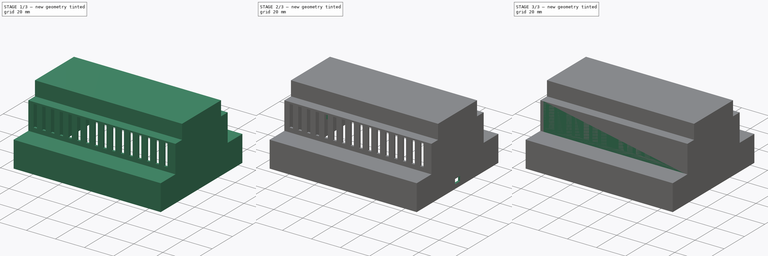
[diagram: build sequence overview — one tinted view per stage of 3, left to right]
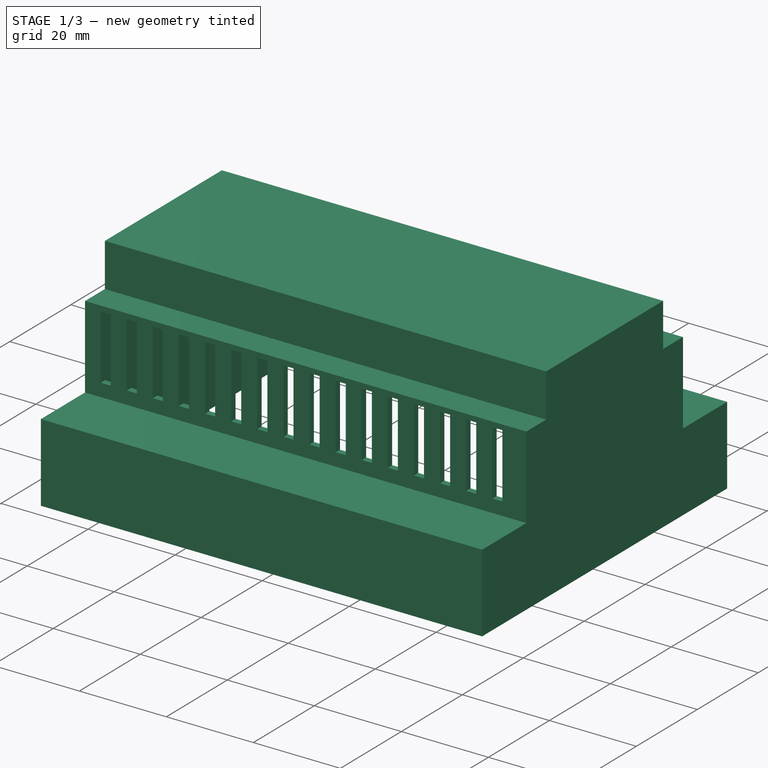
[diagram: stage 1 of 3 — iso view after this stage's code; geometry added in this stage tinted green]
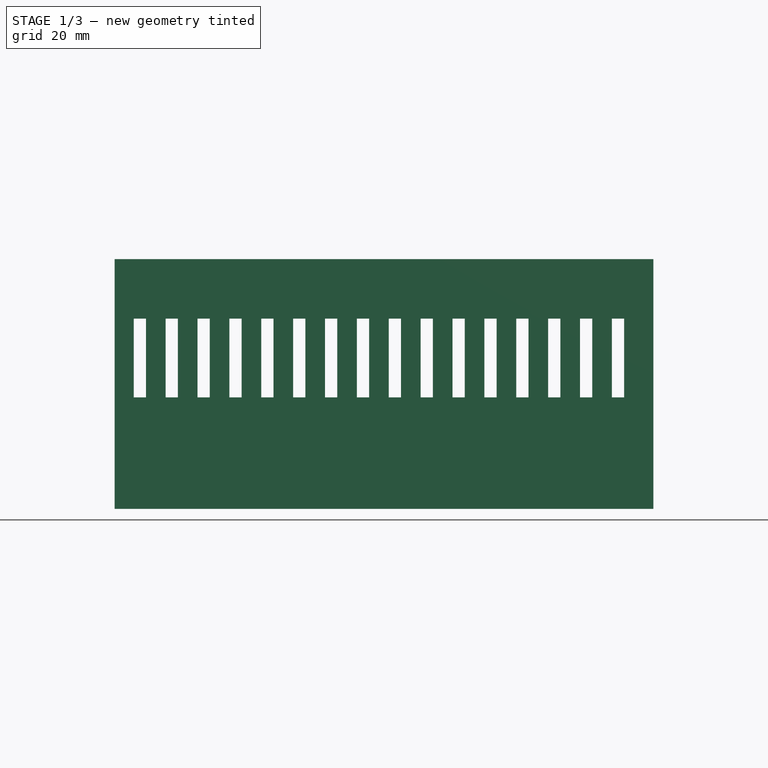
[diagram: stage 1 of 3 — front view after this stage's code; geometry added in this stage tinted green]
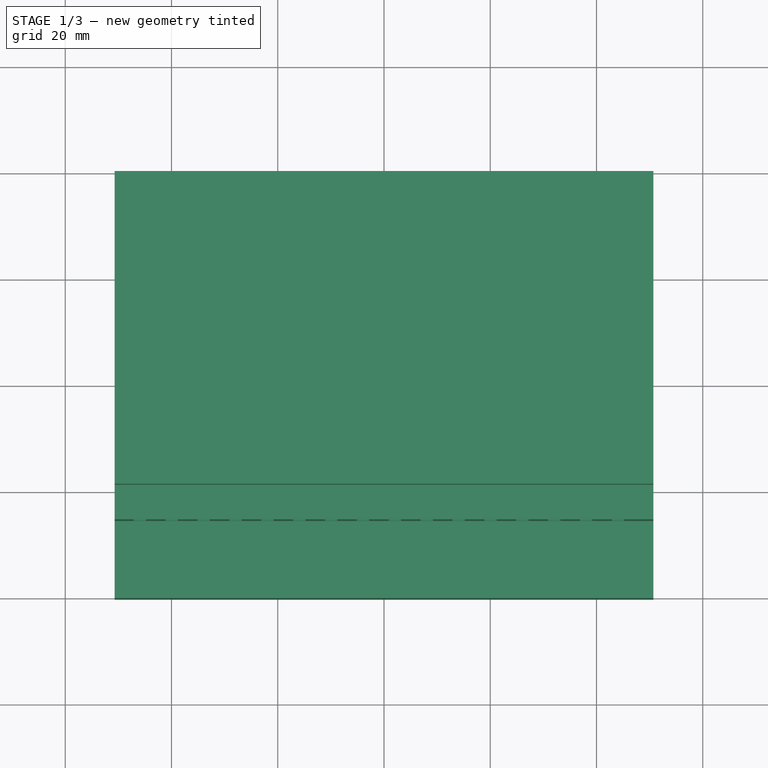
[diagram: stage 1 of 3 — top view after this stage's code; geometry added in this stage tinted green]
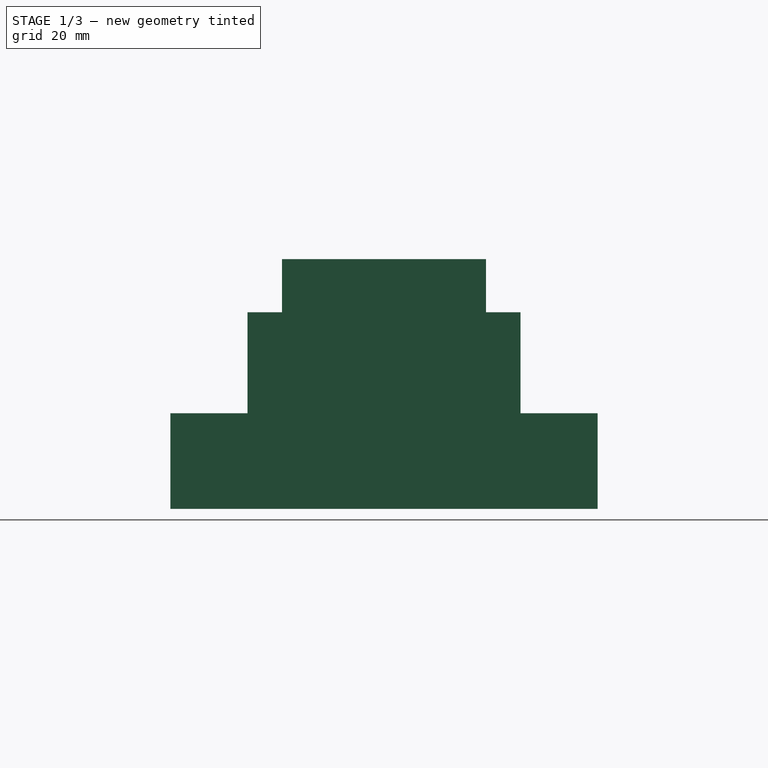
[diagram: stage 1 of 3 — right view after this stage's code; geometry added in this stage tinted green]
FCSTD DOCUMENT  (FreeCAD 1.0R39319 (Git))
Label: Parte Superior_PLC
License: All rights reserved
LicenseURL: https://en.wikipedia.org/wiki/All_rights_reserved
objects: Sketcher::SketchObject×5, PartDesign::Pocket×3, PartDesign::Pad×2, PartDesign::Fillet×2, PartDesign::Thickness×1, PartDesign::Body×1
note: 35 computed .brp shape members not serialized (recipe doc carries the construction recipe); baked Part::Feature solids carry a one-line shape summary decoded from their .brp

FEATURE [Sketcher::SketchObject] Sketch
  ArcFitTolerance = 1e-06
  AttachmentSupport = -> [YZ_Plane]
  FullyConstrained = false
  MakeInternals = false
  MapMode = 5
  Placement = pos=(0,0,0) rot=(0.57735,0.57735,0.57735;2.0944rad)
  sketch-geometry (12):
    g0: LineSegment StartX=-40.2 StartY=-27.4899 StartZ=0 EndX=40.2 EndY=-27.4899 EndZ=0
    g1: LineSegment StartX=40.2 StartY=-27.4899 StartZ=0 EndX=40.2 EndY=-9.48993 EndZ=0
    g2: LineSegment StartX=40.2 StartY=-9.48993 StartZ=0 EndX=25.7 EndY=-9.48993 EndZ=0
    g3: LineSegment StartX=25.7 StartY=-9.48993 StartZ=0 EndX=25.7 EndY=9.51007 EndZ=0
    g4: LineSegment StartX=25.7 StartY=9.51007 StartZ=0 EndX=19.2 EndY=9.51007 EndZ=0
    g5: LineSegment StartX=19.2 StartY=9.51007 StartZ=0 EndX=19.2 EndY=19.5101 EndZ=0
    g6: LineSegment StartX=19.2 StartY=19.5101 StartZ=0 EndX=-19.2 EndY=19.5101 EndZ=0
    g7: LineSegment StartX=-40.2 StartY=-27.4899 StartZ=0 EndX=-40.2 EndY=-9.48993 EndZ=0
    g8: LineSegment StartX=-40.2 StartY=-9.48993 StartZ=0 EndX=-25.7 EndY=-9.48993 EndZ=0
    g9: LineSegment StartX=-25.7 StartY=-9.48993 StartZ=0 EndX=-25.7 EndY=9.51007 EndZ=0
    g10: LineSegment StartX=-25.7 StartY=9.51007 StartZ=0 EndX=-19.2 EndY=9.51007 EndZ=0
    g11: LineSegment StartX=-19.2 StartY=9.51007 StartZ=0 EndX=-19.2 EndY=19.5101 EndZ=0
  constraints (17):
    c: Coincident(g5,g6)
    c: Vertical(g7)
    c: Coincident(g7,g8)
    c: Coincident(g8,g9)
    c: Vertical(g9)
    c: Coincident(g9,g10)
    c: Horizontal(g10)
    c: Coincident(g10,g11)
    c: Vertical(g11)
    c: Horizontal(g8)
    c: Coincident(g5,g4)
    c: Coincident(g4,g3)
    c: Coincident(g3,g2)
    c: Coincident(g2,g1)
    c: Coincident(g1,g0)
    c: Coincident(g7,g0)
    c: Coincident(g11,g6)
FEATURE [PartDesign::Pad] Pad
  Direction = (1,0,0)
  Length = 101.4
  Length2 = 10
  Midplane = true
  Placement = pos=(0,0,0) rot=(1,1,1;2.0944rad)
  Profile = -> Sketch
  ReferenceAxis = -> Sketch [N_Axis]
  Refine = true
  Suppressed = false
  Type = 0
FEATURE [PartDesign::Thickness] Thickness
  Base = -> Pad [Face1]
  BaseFeature = -> Pad
  Intersection = false
  Join = 0
  Mode = 0
  Refine = true
  Reversed = true
  SupportTransform = false
  Suppressed = false
  Value = 1.4
FEATURE [Sketcher::SketchObject] Sketch002
  ArcFitTolerance = 1e-06
  AttachmentSupport = -> [Thickness]
  FullyConstrained = false
  MakeInternals = false
  MapMode = 5
  Placement = pos=(-5.7e-15,-25.7,2.9e-15) rot=(1,0,0;1.5708rad)
  sketch-geometry (64):
    g0: LineSegment StartX=-47.1048 StartY=8.32739 StartZ=0 EndX=-47.1048 EndY=-6.51036 EndZ=0
    g1: LineSegment StartX=-47.1048 StartY=-6.51036 StartZ=0 EndX=-44.803 EndY=-6.51036 EndZ=0
    g2: LineSegment StartX=-44.803 StartY=-6.51036 StartZ=0 EndX=-44.803 EndY=8.32739 EndZ=0
    g3: LineSegment StartX=-44.803 StartY=8.32739 StartZ=0 EndX=-47.1048 EndY=8.32739 EndZ=0
    g4: LineSegment StartX=-41.1048 StartY=8.32739 StartZ=0 EndX=-41.1048 EndY=-6.51036 EndZ=0
    g5: LineSegment StartX=-41.1048 StartY=-6.51036 StartZ=0 EndX=-38.803 EndY=-6.51036 EndZ=0
    g6: LineSegment StartX=-38.803 StartY=-6.51036 StartZ=0 EndX=-38.803 EndY=8.32739 EndZ=0
    g7: LineSegment StartX=-38.803 StartY=8.32739 StartZ=0 EndX=-41.1048 EndY=8.32739 EndZ=0
    g8: LineSegment StartX=-35.1048 StartY=8.32739 StartZ=0 EndX=-35.1048 EndY=-6.51036 EndZ=0
    g9: LineSegment StartX=-35.1048 StartY=-6.51036 StartZ=0 EndX=-32.803 EndY=-6.51036 EndZ=0
    g10: LineSegment StartX=-32.803 StartY=-6.51036 StartZ=0 EndX=-32.803 EndY=8.32739 EndZ=0
    g11: LineSegment StartX=-32.803 StartY=8.32739 StartZ=0 EndX=-35.1048 EndY=8.32739 EndZ=0
    g12: LineSegment StartX=-29.1048 StartY=8.32739 StartZ=0 EndX=-29.1048 EndY=-6.51036 EndZ=0
    g13: LineSegment StartX=-29.1048 StartY=-6.51036 StartZ=0 EndX=-26.803 EndY=-6.51036 EndZ=0
    g14: LineSegment StartX=-26.803 StartY=-6.51036 StartZ=0 EndX=-26.803 EndY=8.32739 EndZ=0
    g15: LineSegment StartX=-26.803 StartY=8.32739 StartZ=0 EndX=-29.1048 EndY=8.32739 EndZ=0
    g16: LineSegment StartX=-23.1048 StartY=8.32739 StartZ=0 EndX=-23.1048 EndY=-6.51036 EndZ=0
    g17: LineSegment StartX=-23.1048 StartY=-6.51036 StartZ=0 EndX=-20.803 EndY=-6.51036 EndZ=0
    g18: LineSegment StartX=-20.803 StartY=-6.51036 StartZ=0 EndX=-20.803 EndY=8.32739 EndZ=0
    g19: LineSegment StartX=-20.803 StartY=8.32739 StartZ=0 EndX=-23.1048 EndY=8.32739 EndZ=0
    g20: LineSegment StartX=-17.1048 StartY=8.32739 StartZ=0 EndX=-17.1048 EndY=-6.51036 EndZ=0
    g21: LineSegment StartX=-17.1048 StartY=-6.51036 StartZ=0 EndX=-14.803 EndY=-6.51036 EndZ=0
    g22: LineSegment StartX=-14.803 StartY=-6.51036 StartZ=0 EndX=-14.803 EndY=8.32739 EndZ=0
    g23: LineSegment StartX=-14.803 StartY=8.32739 StartZ=0 EndX=-17.1048 EndY=8.32739 EndZ=0
    g24: LineSegment StartX=-11.1048 StartY=8.32739 StartZ=0 EndX=-11.1048 EndY=-6.51036 EndZ=0
    g25: LineSegment StartX=-11.1048 StartY=-6.51036 StartZ=0 EndX=-8.80298 EndY=-6.51036 EndZ=0
    g26: LineSegment StartX=-8.80298 StartY=-6.51036 StartZ=0 EndX=-8.80298 EndY=8.32739 EndZ=0
    g27: LineSegment StartX=-8.80298 StartY=8.32739 StartZ=0 EndX=-11.1048 EndY=8.32739 EndZ=0
    g28: LineSegment StartX=-5.10475 StartY=8.32739 StartZ=0 EndX=-5.10475 EndY=-6.51036 EndZ=0
    g29: LineSegment StartX=-5.10475 StartY=-6.51036 StartZ=0 EndX=-2.80298 EndY=-6.51036 EndZ=0
    g30: LineSegment StartX=-2.80298 StartY=-6.51036 StartZ=0 EndX=-2.80298 EndY=8.32739 EndZ=0
    g31: LineSegment StartX=-2.80298 StartY=8.32739 StartZ=0 EndX=-5.10475 EndY=8.32739 EndZ=0
    g32: LineSegment StartX=0.895245 StartY=8.32739 StartZ=0 EndX=0.895245 EndY=-6.51036 EndZ=0
    g33: LineSegment StartX=0.895245 StartY=-6.51036 StartZ=0 EndX=3.19702 EndY=-6.51036 EndZ=0
    g34: LineSegment StartX=3.19702 StartY=-6.51036 StartZ=0 EndX=3.19702 EndY=8.32739 EndZ=0
    g35: LineSegment StartX=3.19702 StartY=8.32739 StartZ=0 EndX=0.895245 EndY=8.32739 EndZ=0
    g36: LineSegment StartX=6.89525 StartY=8.32739 StartZ=0 EndX=6.89525 EndY=-6.51036 EndZ=0
    g37: LineSegment StartX=6.89525 StartY=-6.51036 StartZ=0 EndX=9.19702 EndY=-6.51036 EndZ=0
    g38: LineSegment StartX=9.19702 StartY=-6.51036 StartZ=0 EndX=9.19702 EndY=8.32739 EndZ=0
    g39: LineSegment StartX=9.19702 StartY=8.32739 StartZ=0 EndX=6.89525 EndY=8.32739 EndZ=0
    g40: LineSegment StartX=12.8952 StartY=8.32739 StartZ=0 EndX=12.8952 EndY=-6.51036 EndZ=0
    g41: LineSegment StartX=12.8952 StartY=-6.51036 StartZ=0 EndX=15.197 EndY=-6.51036 EndZ=0
    g42: LineSegment StartX=15.197 StartY=-6.51036 StartZ=0 EndX=15.197 EndY=8.32739 EndZ=0
    g43: LineSegment StartX=15.197 StartY=8.32739 StartZ=0 EndX=12.8952 EndY=8.32739 EndZ=0
    g44: LineSegment StartX=18.8952 StartY=8.32739 StartZ=0 EndX=18.8952 EndY=-6.51036 EndZ=0
    g45: LineSegment StartX=18.8952 StartY=-6.51036 StartZ=0 EndX=21.197 EndY=-6.51036 EndZ=0
    g46: LineSegment StartX=21.197 StartY=-6.51036 StartZ=0 EndX=21.197 EndY=8.32739 EndZ=0
    g47: LineSegment StartX=21.197 StartY=8.32739 StartZ=0 EndX=18.8952 EndY=8.32739 EndZ=0
    g48: LineSegment StartX=24.8952 StartY=8.32739 StartZ=0 EndX=24.8952 EndY=-6.51036 EndZ=0
    g49: LineSegment StartX=24.8952 StartY=-6.51036 StartZ=0 EndX=27.197 EndY=-6.51036 EndZ=0
    g50: LineSegment StartX=27.197 StartY=-6.51036 StartZ=0 EndX=27.197 EndY=8.32739 EndZ=0
    g51: LineSegment StartX=27.197 StartY=8.32739 StartZ=0 EndX=24.8952 EndY=8.32739 EndZ=0
    g52: LineSegment StartX=30.8952 StartY=8.32739 StartZ=0 EndX=30.8952 EndY=-6.51036 EndZ=0
    g53: LineSegment StartX=30.8952 StartY=-6.51036 StartZ=0 EndX=33.197 EndY=-6.51036 EndZ=0
    g54: LineSegment StartX=33.197 StartY=-6.51036 StartZ=0 EndX=33.197 EndY=8.32739 EndZ=0
    g55: LineSegment StartX=33.197 StartY=8.32739 StartZ=0 EndX=30.8952 EndY=8.32739 EndZ=0
    g56: LineSegment StartX=36.8952 StartY=8.32739 StartZ=0 EndX=36.8952 EndY=-6.51036 EndZ=0
    g57: LineSegment StartX=36.8952 StartY=-6.51036 StartZ=0 EndX=39.197 EndY=-6.51036 EndZ=0
    g58: LineSegment StartX=39.197 StartY=-6.51036 StartZ=0 EndX=39.197 EndY=8.32739 EndZ=0
    g59: LineSegment StartX=39.197 StartY=8.32739 StartZ=0 EndX=36.8952 EndY=8.32739 EndZ=0
    g60: LineSegment StartX=42.8952 StartY=8.32739 StartZ=0 EndX=42.8952 EndY=-6.51036 EndZ=0
    g61: LineSegment StartX=42.8952 StartY=-6.51036 StartZ=0 EndX=45.197 EndY=-6.51036 EndZ=0
    g62: LineSegment StartX=45.197 StartY=-6.51036 StartZ=0 EndX=45.197 EndY=8.32739 EndZ=0
    g63: LineSegment StartX=45.197 StartY=8.32739 StartZ=0 EndX=42.8952 EndY=8.32739 EndZ=0
  constraints (128):
    c: Coincident(g0,g1)
    c: Coincident(g1,g2)
    c: Coincident(g2,g3)
    c: Coincident(g3,g0)
    c: Vertical(g0)
    c: Vertical(g2)
    c: Horizontal(g1)
    c: Horizontal(g3)
    c: Coincident(g4,g5)
    c: Coincident(g8,g9)
    c: Coincident(g12,g13)
    c: Coincident(g16,g17)
    c: Coincident(g20,g21)
    c: Coincident(g24,g25)
    c: Coincident(g28,g29)
    c: Coincident(g32,g33)
    c: Coincident(g36,g37)
    c: Coincident(g40,g41)
    c: Coincident(g44,g45)
    c: Coincident(g48,g49)
    c: Coincident(g52,g53)
    c: Coincident(g56,g57)
    c: Coincident(g60,g61)
    c: Coincident(g5,g6)
    c: Coincident(g9,g10)
    c: Coincident(g13,g14)
    c: Coincident(g17,g18)
    c: Coincident(g21,g22)
    c: Coincident(g25,g26)
    c: Coincident(g29,g30)
    c: Coincident(g33,g34)
    c: Coincident(g37,g38)
    c: Coincident(g41,g42)
    c: Coincident(g45,g46)
    c: Coincident(g49,g50)
    c: Coincident(g53,g54)
    c: Coincident(g57,g58)
    c: Coincident(g61,g62)
    c: Coincident(g6,g7)
    c: Coincident(g10,g11)
    c: Coincident(g14,g15)
    c: Coincident(g18,g19)
    c: Coincident(g22,g23)
    c: Coincident(g26,g27)
    c: Coincident(g30,g31)
    c: Coincident(g34,g35)
    c: Coincident(g38,g39)
    c: Coincident(g42,g43)
    c: Coincident(g46,g47)
    c: Coincident(g50,g51)
    c: Coincident(g54,g55)
    c: Coincident(g58,g59)
    c: Coincident(g62,g63)
    c: Coincident(g7,g4)
    c: Coincident(g11,g8)
    c: Coincident(g15,g12)
    c: Coincident(g19,g16)
    c: Coincident(g23,g20)
    c: Coincident(g27,g24)
    c: Coincident(g31,g28)
    c: Coincident(g35,g32)
    c: Coincident(g39,g36)
    c: Coincident(g43,g40)
    c: Coincident(g47,g44)
    c: Coincident(g51,g48)
    c: Coincident(g55,g52)
    c: Coincident(g59,g56)
    c: Coincident(g63,g60)
    c: Vertical(g4)
    c: Vertical(g8)
    c: Vertical(g12)
    c: Vertical(g16)
    c: Vertical(g20)
    c: Vertical(g24)
    c: Vertical(g28)
    c: Vertical(g32)
    c: Vertical(g36)
    c: Vertical(g40)
    c: Vertical(g44)
    c: Vertical(g48)
    c: Vertical(g52)
    c: Vertical(g56)
    c: Vertical(g60)
    c: Vertical(g6)
    c: Vertical(g10)
    c: Vertical(g14)
    c: Vertical(g18)
    c: Vertical(g22)
    c: Vertical(g26)
    c: Vertical(g30)
    c: Vertical(g34)
    c: Vertical(g38)
    c: Vertical(g42)
    c: Vertical(g46)
    c: Vertical(g50)
    c: Vertical(g54)
    c: Vertical(g58)
    c: Vertical(g62)
    c: Horizontal(g5)
    c: Horizontal(g9)
    c: Horizontal(g13)
    c: Horizontal(g17)
    c: Horizontal(g21)
    c: Horizontal(g25)
    c: Horizontal(g29)
    c: Horizontal(g33)
    c: Horizontal(g37)
    c: Horizontal(g41)
    c: Horizontal(g45)
    c: Horizontal(g49)
    c: Horizontal(g53)
    c: Horizontal(g57)
    c: Horizontal(g61)
    c: Horizontal(g7)
    c: Horizontal(g11)
    c: Horizontal(g15)
    c: Horizontal(g19)
    c: Horizontal(g23)
    c: Horizontal(g27)
    c: Horizontal(g31)
    c: Horizontal(g35)
    c: Horizontal(g39)
    c: Horizontal(g43)
    c: Horizontal(g47)
    c: Horizontal(g51)
    c: Horizontal(g55)
    c: Horizontal(g59)
    c: Horizontal(g63)
FEATURE [PartDesign::Pocket] Pocket001
  BaseFeature = -> Thickness
  Direction = (0,1,-2e-16)
  Length = 5
  Length2 = 5
  Profile = -> Sketch002
  ReferenceAxis = -> Sketch002 [N_Axis]
  Refine = true
  Suppressed = false
  Type = 1
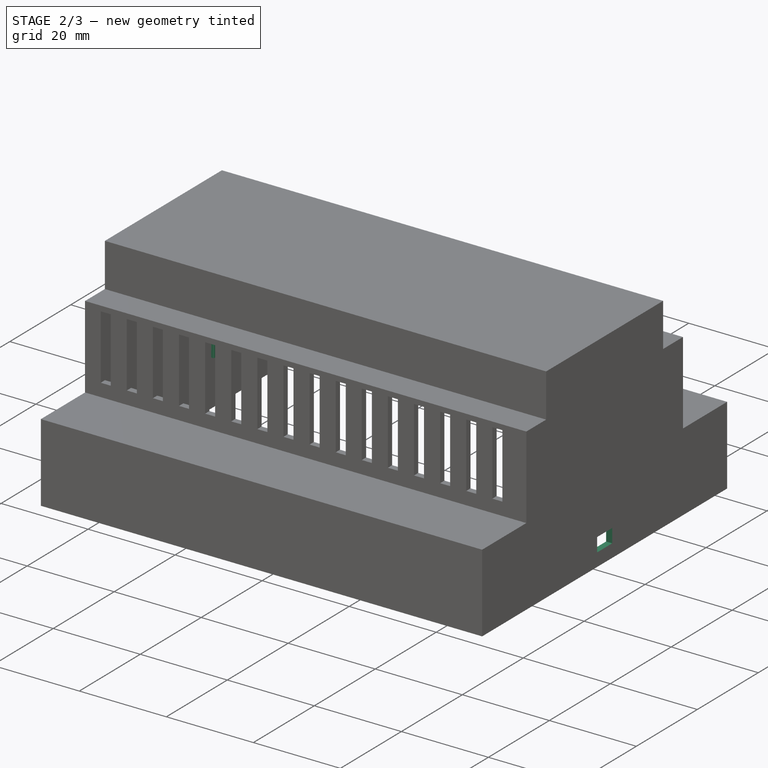
[diagram: stage 2 of 3 — iso view after this stage's code; geometry added in this stage tinted green]
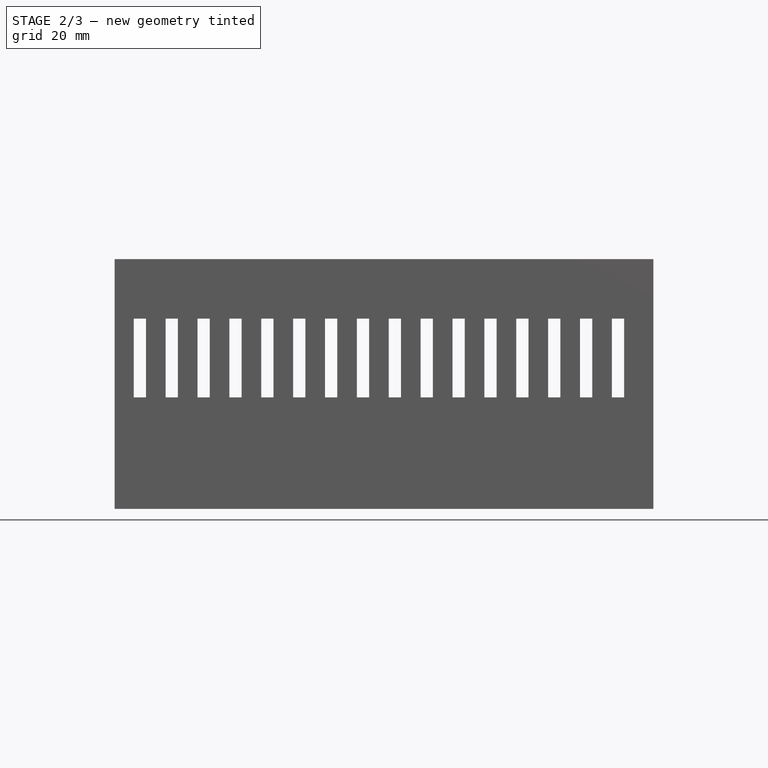
[diagram: stage 2 of 3 — front view after this stage's code; geometry added in this stage tinted green]
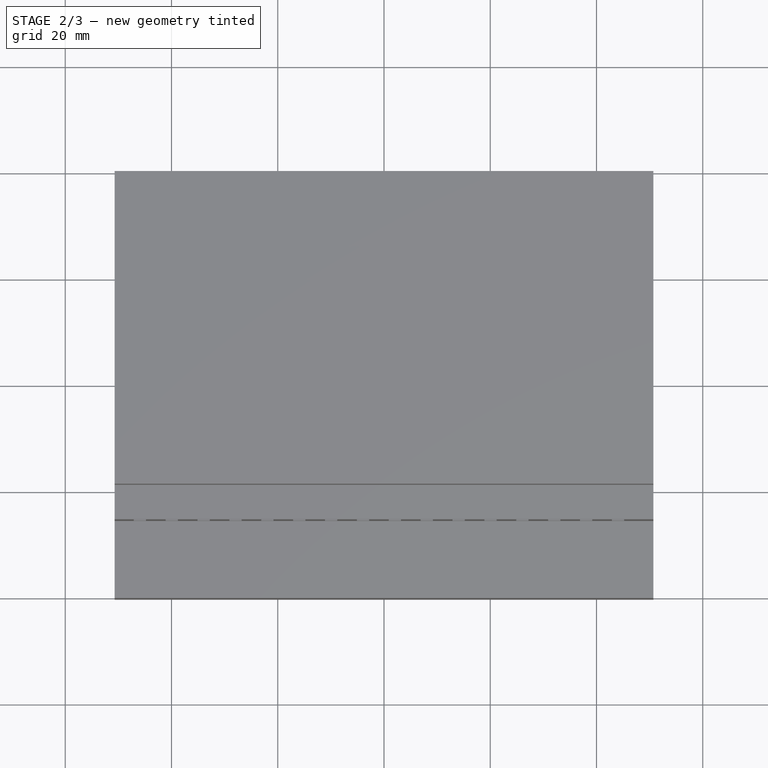
[diagram: stage 2 of 3 — top view after this stage's code; geometry added in this stage tinted green]
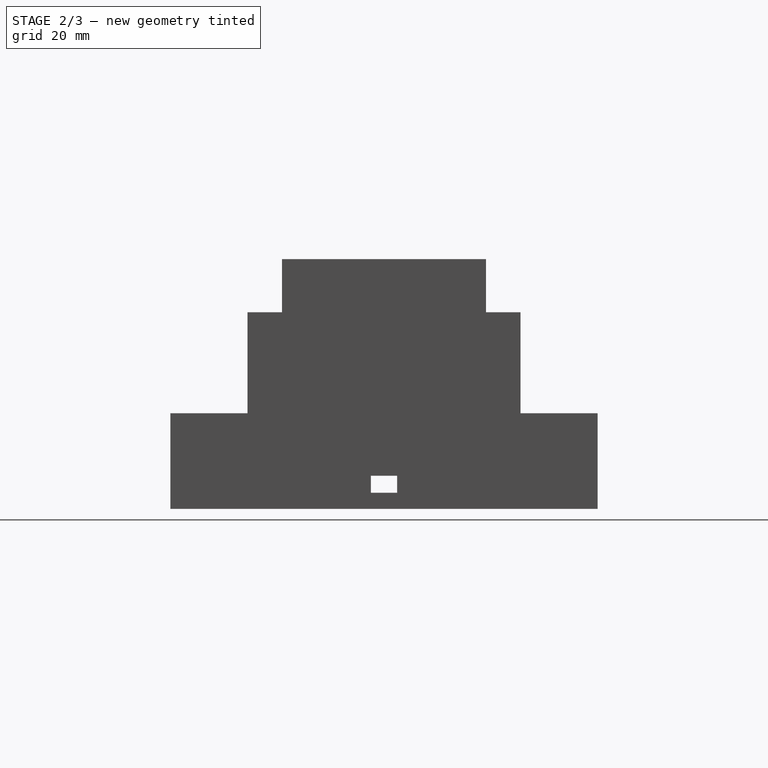
[diagram: stage 2 of 3 — right view after this stage's code; geometry added in this stage tinted green]
FEATURE [Sketcher::SketchObject] Sketch003
  ArcFitTolerance = 1e-06
  AttachmentSupport = -> [Pocket001]
  FullyConstrained = false
  MakeInternals = false
  MapMode = 5
  Placement = pos=(50.7,-1.13e-14,5.6e-15) rot=(0.57735,0.57735,0.57735;2.0944rad)
  sketch-geometry (5):
    g0: LineSegment StartX=2.48048 StartY=-24.4612 StartZ=0 EndX=2.48048 EndY=-21.269 EndZ=0
    g1: LineSegment StartX=2.48048 StartY=-21.269 StartZ=0 EndX=-2.48048 EndY=-21.269 EndZ=0
    g2: LineSegment StartX=-2.48048 StartY=-21.269 StartZ=0 EndX=-2.48048 EndY=-24.4612 EndZ=0
    g3: LineSegment StartX=-2.48048 StartY=-24.4612 StartZ=0 EndX=2.48048 EndY=-24.4612 EndZ=0
    g4: GeomPoint [constr] X=0 Y=-22.8651 Z=0
  constraints (10):
    c: Coincident(g0,g1)
    c: Coincident(g1,g2)
    c: Coincident(g2,g3)
    c: Coincident(g3,g0)
    c: Vertical(g0)
    c: Vertical(g2)
    c: Horizontal(g1)
    c: Horizontal(g3)
    c: Symmetric(g2,g0,g4)
    c: PointOnObject(g4,g-2)
FEATURE [PartDesign::Pocket] Pocket002
  BaseFeature = -> Pocket001
  Direction = (-1,0,0)
  Length = 5
  Length2 = 5
  Profile = -> Sketch003
  ReferenceAxis = -> Sketch003 [N_Axis]
  Refine = true
  Suppressed = false
  Type = 1
FEATURE [Sketcher::SketchObject] Sketch004
  ArcFitTolerance = 1e-06
  AttachmentSupport = -> [Pocket002]
  FullyConstrained = false
  MakeInternals = false
  MapMode = 5
  Placement = pos=(-2e-15,6e-15,18.1101) rot=(1,0,0;3.14159rad)
  sketch-geometry (54):
    g0: LineSegment StartX=49.9092 StartY=-15.9169 StartZ=0 EndX=49.9092 EndY=-13.6701 EndZ=0
    g1: LineSegment StartX=49.9092 StartY=-13.6701 StartZ=0 EndX=48.8397 EndY=-13.6701 EndZ=0
    g2: LineSegment StartX=48.6635 StartY=-13.8463 StartZ=0 EndX=48.6635 EndY=-15.7407 EndZ=0
    g3: LineSegment StartX=48.8397 StartY=-15.9169 StartZ=0 EndX=49.9092 EndY=-15.9169 EndZ=0
    g4: GeomPoint [constr] X=49.2864 Y=-14.7935 Z=0
    g5: LineSegment StartX=49.9092 StartY=-0.916904 StartZ=0 EndX=49.9092 EndY=1.3299 EndZ=0
    g6: LineSegment StartX=49.9092 StartY=1.3299 StartZ=0 EndX=48.8397 EndY=1.3299 EndZ=0
    g7: LineSegment StartX=48.6635 StartY=1.15373 StartZ=0 EndX=48.6635 EndY=-0.740732 EndZ=0
    g8: LineSegment StartX=48.8397 StartY=-0.916904 StartZ=0 EndX=49.9092 EndY=-0.916904 EndZ=0
    g9: GeomPoint [constr] X=49.2864 Y=0.2065 Z=0
    g10: LineSegment StartX=49.9092 StartY=14.0831 StartZ=0 EndX=49.9092 EndY=16.3299 EndZ=0
    g11: LineSegment StartX=49.9092 StartY=16.3299 StartZ=0 EndX=48.8397 EndY=16.3299 EndZ=0
    g12: LineSegment StartX=48.6635 StartY=16.1537 StartZ=0 EndX=48.6635 EndY=14.2593 EndZ=0
    g13: LineSegment StartX=48.8397 StartY=14.0831 StartZ=0 EndX=49.9092 EndY=14.0831 EndZ=0
    g14: GeomPoint [constr] X=49.2864 Y=15.2065 Z=0
    g15: LineSegment StartX=-49.9092 StartY=-15.9169 StartZ=0 EndX=-49.9092 EndY=-13.6701 EndZ=0
    g16: LineSegment StartX=-49.9092 StartY=-13.6701 StartZ=0 EndX=-48.8397 EndY=-13.6701 EndZ=0
    g17: LineSegment StartX=-48.6635 StartY=-13.8463 StartZ=0 EndX=-48.6635 EndY=-15.7407 EndZ=0
    g18: LineSegment StartX=-48.8397 StartY=-15.9169 StartZ=0 EndX=-49.9092 EndY=-15.9169 EndZ=0
    g19: GeomPoint [constr] X=-49.2864 Y=-14.7935 Z=0
    g20: LineSegment StartX=-49.9092 StartY=-0.916904 StartZ=0 EndX=-49.9092 EndY=1.3299 EndZ=0
    g21: LineSegment StartX=-49.9092 StartY=1.3299 StartZ=0 EndX=-48.8397 EndY=1.3299 EndZ=0
    g22: LineSegment StartX=-48.6635 StartY=1.15373 StartZ=0 EndX=-48.6635 EndY=-0.740732 EndZ=0
    g23: LineSegment StartX=-48.8397 StartY=-0.916904 StartZ=0 EndX=-49.9092 EndY=-0.916904 EndZ=0
    g24: GeomPoint [constr] X=-49.2864 Y=0.2065 Z=0
    g25: LineSegment StartX=-49.9092 StartY=14.0831 StartZ=0 EndX=-49.9092 EndY=16.3299 EndZ=0
    g26: LineSegment StartX=-49.9092 StartY=16.3299 StartZ=0 EndX=-48.8397 EndY=16.3299 EndZ=0
    g27: LineSegment StartX=-48.6635 StartY=16.1537 StartZ=0 EndX=-48.6635 EndY=14.2593 EndZ=0
    g28: LineSegment StartX=-48.8397 StartY=14.0831 StartZ=0 EndX=-49.9092 EndY=14.0831 EndZ=0
    g29: GeomPoint [constr] X=-49.2864 Y=15.2065 Z=0
    g30: ArcOfCircle CenterX=48.8397 CenterY=-15.7407 CenterZ=0 NormalX=0 NormalY=0 NormalZ=1 AngleXU=0 Radius=0.176172 StartAngle=3.14159 EndAngle=4.71239
    g31: GeomPoint [constr] X=48.6635 Y=-15.9169 Z=0
    g32: ArcOfCircle CenterX=48.8397 CenterY=-13.8463 CenterZ=0 NormalX=0 NormalY=0 NormalZ=1 AngleXU=0 Radius=0.176172 StartAngle=1.5708 EndAngle=3.14159
    g33: GeomPoint [constr] X=48.6635 Y=-13.6701 Z=0
    g34: ArcOfCircle CenterX=48.8397 CenterY=-0.740732 CenterZ=0 NormalX=0 NormalY=0 NormalZ=1 AngleXU=0 Radius=0.176172 StartAngle=3.14159 EndAngle=4.71239
    g35: GeomPoint [constr] X=48.6635 Y=-0.916904 Z=0
    g36: ArcOfCircle CenterX=48.8397 CenterY=1.15373 CenterZ=0 NormalX=0 NormalY=0 NormalZ=1 AngleXU=0 Radius=0.176172 StartAngle=1.5708 EndAngle=3.14159
    g37: GeomPoint [constr] X=48.6635 Y=1.3299 Z=0
    g38: ArcOfCircle CenterX=48.8397 CenterY=14.2593 CenterZ=0 NormalX=0 NormalY=0 NormalZ=1 AngleXU=0 Radius=0.176172 StartAngle=3.14159 EndAngle=4.71239
    g39: GeomPoint [constr] X=48.6635 Y=14.0831 Z=0
    g40: ArcOfCircle CenterX=48.8397 CenterY=16.1537 CenterZ=0 NormalX=0 NormalY=0 NormalZ=1 AngleXU=0 Radius=0.176172 StartAngle=1.5708 EndAngle=3.14159
    g41: GeomPoint [constr] X=48.6635 Y=16.3299 Z=0
    g42: ArcOfCircle CenterX=-48.8397 CenterY=16.1537 CenterZ=0 NormalX=0 NormalY=0 NormalZ=1 AngleXU=0 Radius=0.176172 StartAngle=0 EndAngle=1.5708
    g43: GeomPoint [constr] X=-48.6635 Y=16.3299 Z=0
    g44: ArcOfCircle CenterX=-48.8397 CenterY=14.2593 CenterZ=0 NormalX=0 NormalY=0 NormalZ=1 AngleXU=0 Radius=0.176172 StartAngle=4.71239 EndAngle=6.28319
    g45: GeomPoint [constr] X=-48.6635 Y=14.0831 Z=0
    g46: ArcOfCircle CenterX=-48.8397 CenterY=1.15373 CenterZ=0 NormalX=0 NormalY=0 NormalZ=1 AngleXU=0 Radius=0.176172 StartAngle=0 EndAngle=1.5708
    g47: GeomPoint [constr] X=-48.6635 Y=1.3299 Z=0
    g48: ArcOfCircle CenterX=-48.8397 CenterY=-0.740732 CenterZ=0 NormalX=0 NormalY=0 NormalZ=1 AngleXU=0 Radius=0.176172 StartAngle=4.71239 EndAngle=6.28319
    g49: GeomPoint [constr] X=-48.6635 Y=-0.916904 Z=0
    g50: ArcOfCircle CenterX=-48.8397 CenterY=-13.8463 CenterZ=0 NormalX=0 NormalY=0 NormalZ=1 AngleXU=0 Radius=0.176172 StartAngle=0 EndAngle=1.5708
    g51: GeomPoint [constr] X=-48.6635 Y=-13.6701 Z=0
    g52: ArcOfCircle CenterX=-48.8397 CenterY=-15.7407 CenterZ=0 NormalX=0 NormalY=0 NormalZ=1 AngleXU=0 Radius=0.176172 StartAngle=4.71239 EndAngle=6.28319
    g53: GeomPoint [constr] X=-48.6635 Y=-15.9169 Z=0
  constraints (90):
    c: Coincident(g0,g1)
    c: Coincident(g3,g0)
    c: Vertical(g0)
    c: Vertical(g2)
    c: Horizontal(g1)
    c: Horizontal(g3)
    c: Symmetric(g33,g0,g4)
    c: Coincident(g5,g6)
    c: Coincident(g10,g11)
    c: Coincident(g8,g5)
    c: Coincident(g13,g10)
    c: Vertical(g5)
    c: Vertical(g10)
    c: Vertical(g7)
    c: Vertical(g12)
    c: Horizontal(g6)
    c: Horizontal(g11)
    c: Horizontal(g8)
    c: Horizontal(g13)
    c: Symmetric(g37,g5,g9)
    c: Symmetric(g41,g10,g14)
    c: Coincident(g15,g16)
    c: Coincident(g18,g15)
    c: Vertical(g15)
    c: Vertical(g17)
    c: Horizontal(g16)
    c: Horizontal(g18)
    c: Symmetric(g51,g15,g19)
    c: Coincident(g20,g21)
    c: Coincident(g25,g26)
    c: Coincident(g23,g20)
    c: Coincident(g28,g25)
    c: Vertical(g20)
    c: Vertical(g25)
    c: Vertical(g22)
    c: Vertical(g27)
    c: Horizontal(g21)
    c: Horizontal(g26)
    c: Horizontal(g23)
    c: Horizontal(g28)
    c: Symmetric(g47,g20,g24)
    c: Symmetric(g43,g25,g29)
    c: PointOnObject(g31,g2)
    c: PointOnObject(g31,g3)
    c: Tangent(g2,g30) = -1.5708
    c: Tangent(g3,g30) = -1.5708
    c: PointOnObject(g33,g1)
    c: PointOnObject(g33,g2)
    c: Tangent(g1,g32) = -1.5708
    c: Tangent(g2,g32) = -1.5708
    c: PointOnObject(g35,g7)
    c: PointOnObject(g35,g8)
    c: Tangent(g7,g34) = -1.5708
    c: Tangent(g8,g34) = -1.5708
    c: PointOnObject(g37,g6)
    c: PointOnObject(g37,g7)
    c: Tangent(g6,g36) = -1.5708
    c: Tangent(g7,g36) = -1.5708
    c: PointOnObject(g39,g12)
    c: PointOnObject(g39,g13)
    c: Tangent(g12,g38) = -1.5708
    c: Tangent(g13,g38) = -1.5708
    c: PointOnObject(g41,g11)
    c: PointOnObject(g41,g12)
    c: Tangent(g11,g40) = -1.5708
    c: Tangent(g12,g40) = -1.5708
    c: PointOnObject(g43,g26)
    c: PointOnObject(g43,g27)
    c: Tangent(g26,g42) = 1.5708
    c: Tangent(g27,g42) = 1.5708
    c: PointOnObject(g45,g27)
    c: PointOnObject(g45,g28)
    c: Tangent(g27,g44) = 1.5708
    c: Tangent(g28,g44) = 1.5708
    c: PointOnObject(g47,g21)
    c: PointOnObject(g47,g22)
    c: Tangent(g21,g46) = 1.5708
    c: Tangent(g22,g46) = 1.5708
    c: PointOnObject(g49,g22)
    c: PointOnObject(g49,g23)
    c: Tangent(g22,g48) = 1.5708
    c: Tangent(g23,g48) = 1.5708
    c: PointOnObject(g51,g16)
    c: PointOnObject(g51,g17)
    c: Tangent(g16,g50) = 1.5708
    c: Tangent(g17,g50) = 1.5708
    c: PointOnObject(g53,g17)
    c: PointOnObject(g53,g18)
    c: Tangent(g17,g52) = 1.5708
    c: Tangent(g18,g52) = 1.5708
FEATURE [PartDesign::Pad] Pad001
  BaseFeature = -> Pocket002
  Direction = (0,0,-1)
  Length = 35
  Length2 = 10
  Profile = -> Sketch004
  ReferenceAxis = -> Sketch004 [N_Axis]
  Refine = true
  Suppressed = false
  Type = 0
FEATURE [PartDesign::Body] Body  label="Cuerpo"
  AllowCompound = false
  Group = -> [Sketch,Pad,Sketch001,Pocket,Fillet,Fillet001,Thickness,Sketch002,Pocket001,Sketch003,Pocket002,Sketch004,Pad001]
  Origin = -> Origin
  Tip = -> Pad001
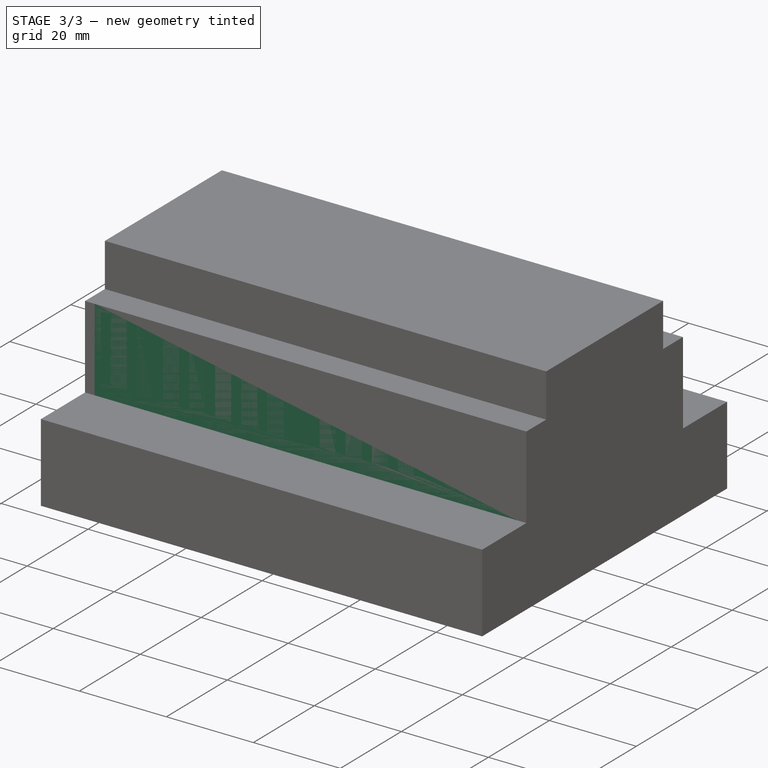
[diagram: stage 3 of 3 — iso view after this stage's code; geometry added in this stage tinted green]
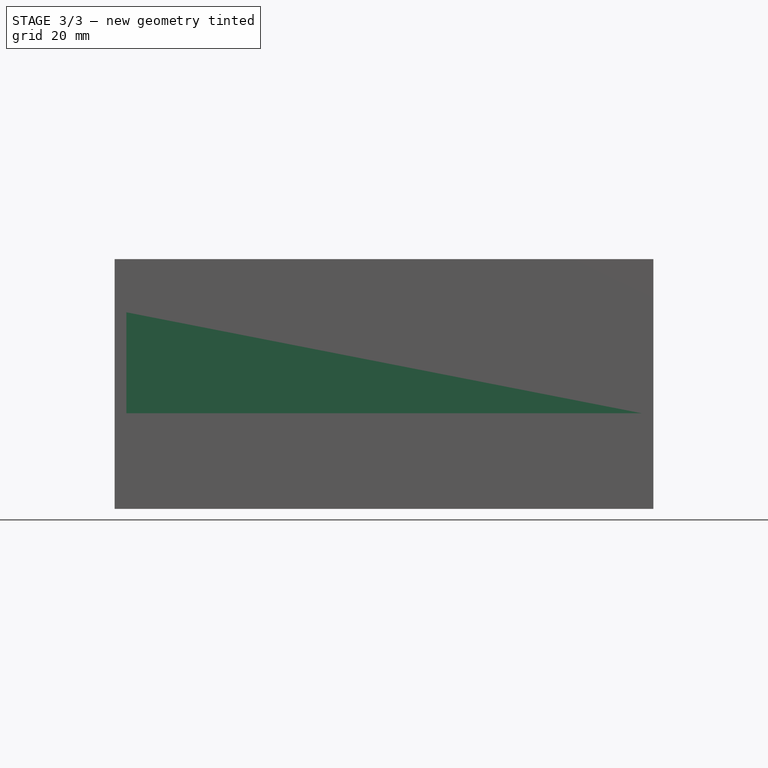
[diagram: stage 3 of 3 — front view after this stage's code; geometry added in this stage tinted green]
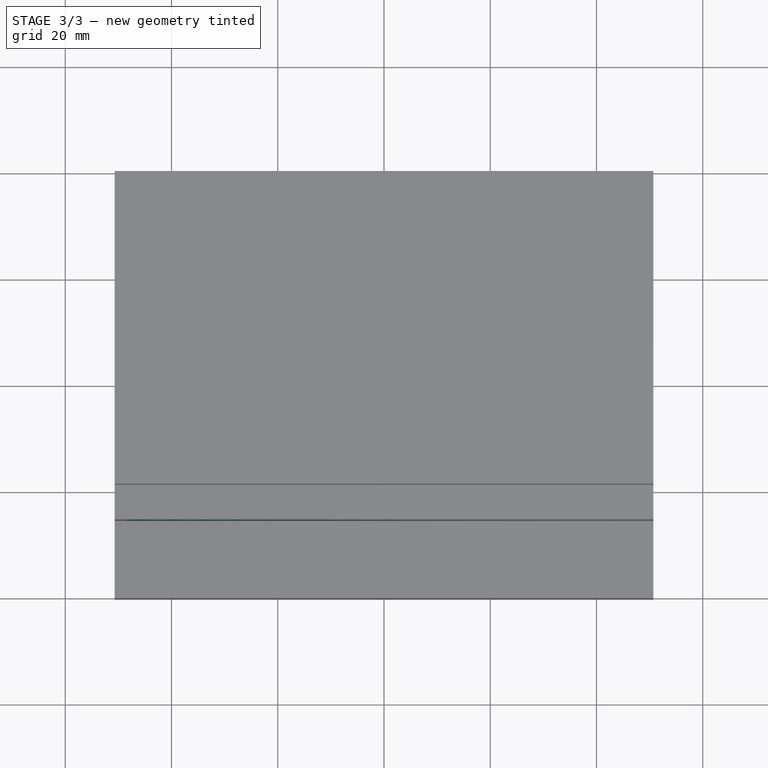
[diagram: stage 3 of 3 — top view after this stage's code; geometry added in this stage tinted green]
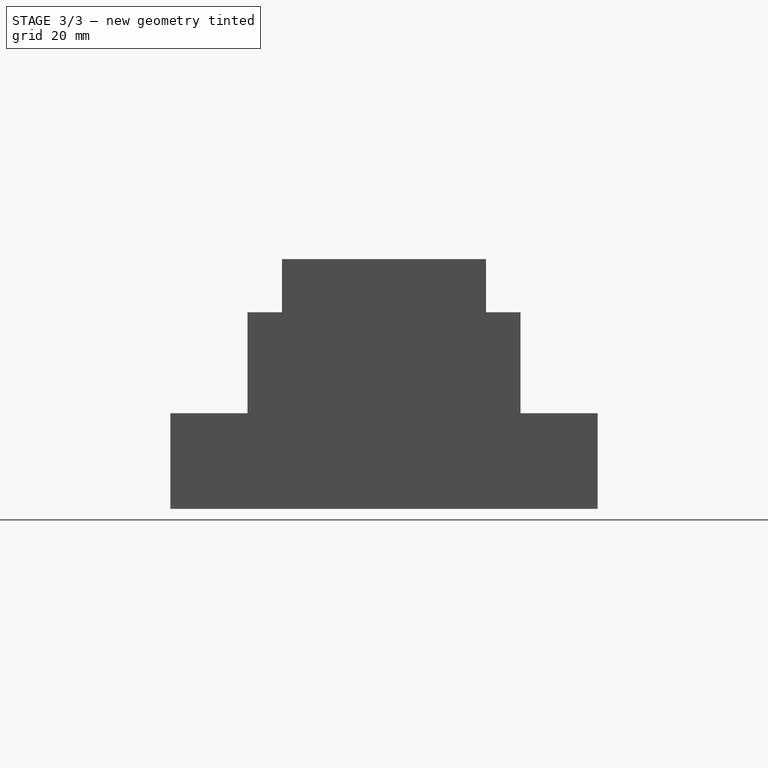
[diagram: stage 3 of 3 — right view after this stage's code; geometry added in this stage tinted green]
FEATURE [Sketcher::SketchObject] Sketch001
  ArcFitTolerance = 1e-06
  FullyConstrained = false
  MakeInternals = false
  MapMode = 5
  Placement = pos=(-2.2e-15,6.5e-15,19.5101) rot=(0,0,-1;1.5708rad)
  sketch-geometry (5):
    g0: LineSegment StartX=-18.3164 StartY=-47.2954 StartZ=0 EndX=18.3164 EndY=-47.2954 EndZ=0
    g1: LineSegment StartX=18.3164 StartY=-47.2954 StartZ=0 EndX=18.3164 EndY=47.2954 EndZ=0
    g2: LineSegment StartX=18.3164 StartY=47.2954 StartZ=0 EndX=-18.3164 EndY=47.2954 EndZ=0
    g3: LineSegment StartX=-18.3164 StartY=47.2954 StartZ=0 EndX=-18.3164 EndY=-47.2954 EndZ=0
    g4: GeomPoint [constr] X=0 Y=0 Z=0
  constraints (10):
    c: Coincident(g0,g1)
    c: Coincident(g1,g2)
    c: Coincident(g2,g3)
    c: Coincident(g3,g0)
    c: Horizontal(g0)
    c: Horizontal(g2)
    c: Vertical(g1)
    c: Vertical(g3)
    c: Symmetric(g2,g0,g4)
    c: Coincident(g4,g-1)
FEATURE [PartDesign::Pocket] Pocket
  BaseFeature = -> Pad
  Direction = (0,0,-1)
  Length = 0.5
  Length2 = 5
  Placement = pos=(0,0,0) rot=(1,1,1;2.0944rad)
  Profile = -> Sketch001
  ReferenceAxis = -> Sketch001 [N_Axis]
  Refine = true
  Suppressed = false
  Type = 0
FEATURE [PartDesign::Fillet] Fillet
  Base = -> Pocket [Edge16,Edge18,Edge6,Edge17,Edge19,Edge14,Edge13,Edge12,Edge11,Edge9,Edge25,Edge26,Edge27,Edge7,Edge28,Edge23,Edge22,Edge21,Edge20,Edge10]
  BaseFeature = -> Pocket
  Placement = pos=(0,0,0) rot=(1,1,1;2.0944rad)
  Radius = 2.2
  Refine = true
  SupportTransform = false
  Suppressed = false
  UseAllEdges = false
FEATURE [PartDesign::Fillet] Fillet001
  Base = -> Fillet [?Edge78,?Edge40,?Edge77,?Edge11]
  BaseFeature = -> Fillet
  Placement = pos=(0,0,0) rot=(1,1,1;2.0944rad)
  Radius = 2
  Refine = true
  SupportTransform = false
  Suppressed = false
  UseAllEdges = false
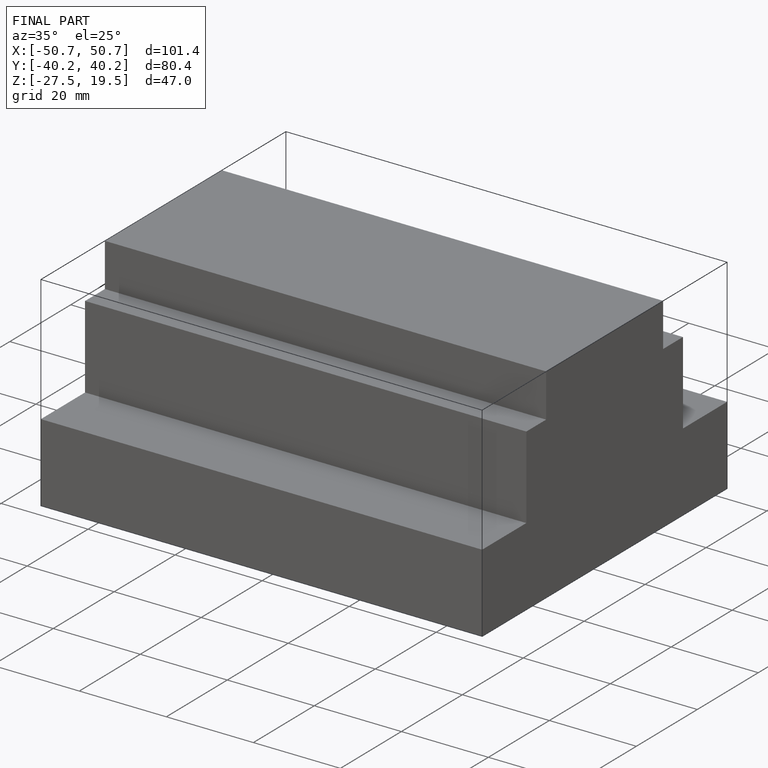
[diagram: finished part — iso view with bounding-box wireframe]
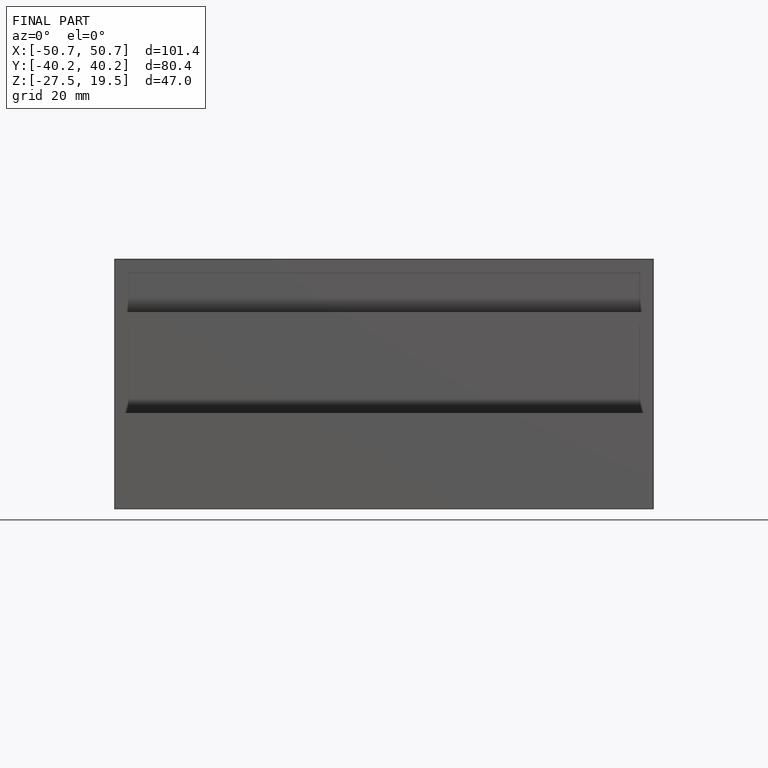
[diagram: finished part — front view with bounding-box wireframe]
